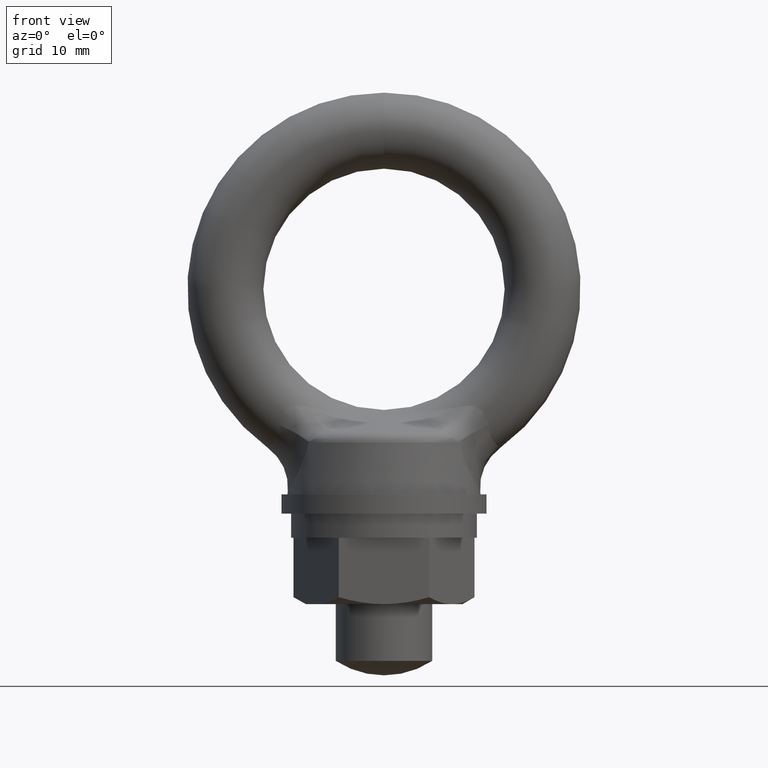
[diagram: clean part render]
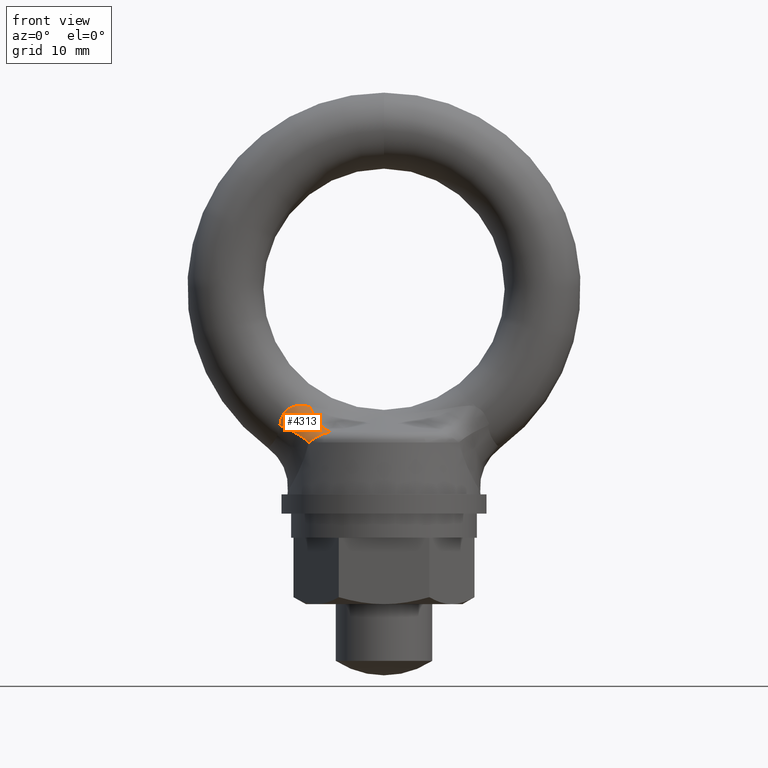
[diagram: same view with one face highlighted and labeled with its STEP entity id]
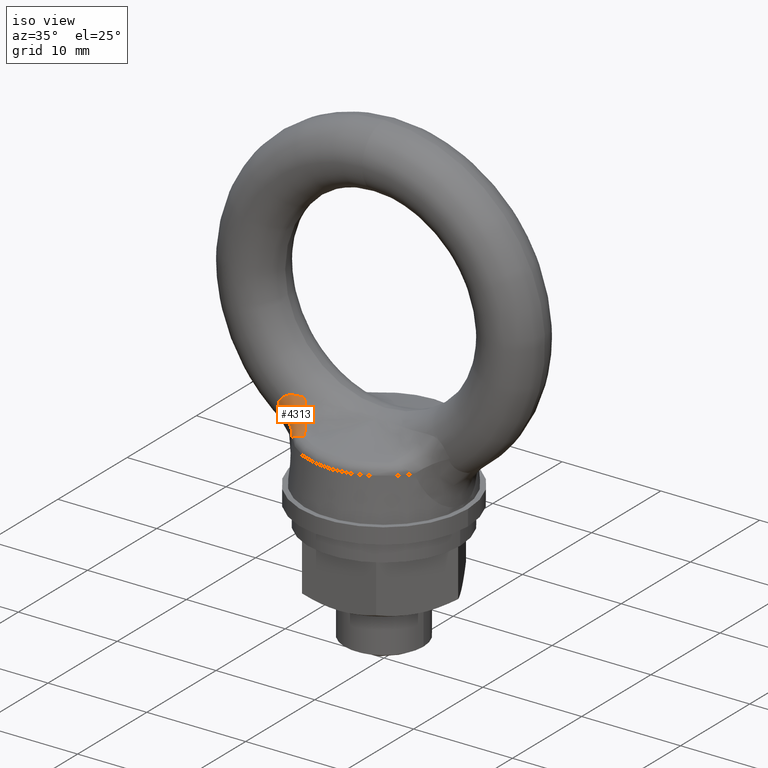
[diagram: same view with one face highlighted and labeled with its STEP entity id]
A machine part, front view. The second image highlights one B-rep face of the part: STEP entity #4313.
A second angle (iso view) of the same face is appended — the face is thin or edge-on in the first view.
In plain terms, the highlighted face is a freeform B-spline surface patch.
Its self-contained STEP definition (entity closure, byte-faithful):
#549 = CARTESIAN_POINT ( 'NONE',  ( -6.476156092700287900, -3.912001196998861700, -11.81391630610212200 ) ) ;
#550 = CARTESIAN_POINT ( 'NONE',  ( -6.685236267585130700, -3.734120323378470100, -11.65447365558294400 ) ) ;
#551 = CARTESIAN_POINT ( 'NONE',  ( -6.909989938914297800, -3.589379040130504800, -11.48736674495817000 ) ) ;
#552 = CARTESIAN_POINT ( 'NONE',  ( -7.134743610243464900, -3.444637756882539900, -11.32025983433339700 ) ) ;
#553 = CARTESIAN_POINT ( 'NONE',  ( -6.100932761017900500, -4.324183175825849500, -12.10863580525888100 ) ) ;
#554 = CARTESIAN_POINT ( 'NONE',  ( -6.288544426859093800, -4.118092186412355600, -11.96127605568050200 ) ) ;
#555 = CARTESIAN_POINT ( 'NONE',  ( -7.345488245778694700, -3.337025844902773200, -11.11253228624629900 ) ) ;
#556 = CARTESIAN_POINT ( 'NONE',  ( -7.594597750688612000, -3.261087111481088200, -10.93051454457098800 ) ) ;
#557 = CARTESIAN_POINT ( 'NONE',  ( -7.843707255598528300, -3.185148378059402800, -10.74849680289567600 ) ) ;
#558 = CARTESIAN_POINT ( 'NONE',  ( -8.101430728038158300, -3.146084794421552200, -10.56291336463829800 ) ) ;
#559 = CARTESIAN_POINT ( 'NONE',  ( -8.360512440170081700, -3.144996123536534200, -10.37898898836035700 ) ) ;
#560 = CARTESIAN_POINT ( 'NONE',  ( -5.794777641809549400, -4.814438929481252800, -12.36331135904009500 ) ) ;
#561 = CARTESIAN_POINT ( 'NONE',  ( -5.934809087086061500, -4.558462885634077600, -12.24389735153532200 ) ) ;
#562 = CARTESIAN_POINT ( 'NONE',  ( -5.828262570963138600, -4.790455905439663400, -12.38660495816619200 ) ) ;
#578 = CARTESIAN_POINT ( 'NONE',  ( -5.727022553237098600, -4.859879480258968900, -12.31788522595592500 ) ) ;
#579 = CARTESIAN_POINT ( 'NONE',  ( -5.868740153250576500, -4.597346636213478300, -12.20155193554739400 ) ) ;
#580 = CARTESIAN_POINT ( 'NONE',  ( -6.036477766308732600, -4.356914149110272300, -12.06711137091902100 ) ) ;
#581 = CARTESIAN_POINT ( 'NONE',  ( -6.225440381929806800, -4.145454276757679900, -11.91840716085605600 ) ) ;
#582 = CARTESIAN_POINT ( 'NONE',  ( -6.414402997550880900, -3.933994404405087400, -11.76970295079309100 ) ) ;
#583 = CARTESIAN_POINT ( 'NONE',  ( -6.624569730741310300, -3.751530511855067900, -11.60675153028037300 ) ) ;
#584 = CARTESIAN_POINT ( 'NONE',  ( -6.849932472588522900, -3.603277965144572100, -11.43421066744793700 ) ) ;
#585 = CARTESIAN_POINT ( 'NONE',  ( -7.075295214435734600, -3.455025418434076300, -11.26166980461550100 ) ) ;
#586 = CARTESIAN_POINT ( 'NONE',  ( -7.315829055168457300, -3.341000599005429000, -11.07955856243915300 ) ) ;
#587 = CARTESIAN_POINT ( 'NONE',  ( -7.564657528520692500, -3.264462771336132300, -10.89308162134639300 ) ) ;
#588 = CARTESIAN_POINT ( 'NONE',  ( -7.813486001872926900, -3.187924943666835500, -10.70660468025363300 ) ) ;
#589 = CARTESIAN_POINT ( 'NONE',  ( -8.392430793801462800, -3.141540437730855100, -10.43190945276440100 ) ) ;
#590 = CARTESIAN_POINT ( 'NONE',  ( -8.132279853775690600, -3.143287022869901900, -10.61004409142924800 ) ) ;
#591 = CARTESIAN_POINT ( 'NONE',  ( -7.624537972856531500, -3.257711451626043700, -10.96794746779558200 ) ) ;
#592 = CARTESIAN_POINT ( 'NONE',  ( -7.873928509324128900, -3.182371812451970000, -10.79038892553772100 ) ) ;
#593 = CARTESIAN_POINT ( 'NONE',  ( -7.375147436388933100, -3.333051090800117400, -11.14550601005344400 ) ) ;
#594 = CARTESIAN_POINT ( 'NONE',  ( -5.970532647643378400, -4.387192580609274200, -12.02825966723517400 ) ) ;
#595 = CARTESIAN_POINT ( 'NONE',  ( -6.160623691673925400, -4.170567881343173700, -11.87877069975228000 ) ) ;
#596 = CARTESIAN_POINT ( 'NONE',  ( -6.350714735704471500, -3.953943182077073600, -11.72928173226938700 ) ) ;
#597 = CARTESIAN_POINT ( 'NONE',  ( -6.561566292752525300, -3.766918328019699800, -11.56333996991188000 ) ) ;
#598 = CARTESIAN_POINT ( 'NONE',  ( -6.786982569877532800, -3.614988973491556600, -11.38582154835621000 ) ) ;
#599 = CARTESIAN_POINT ( 'NONE',  ( -7.012398847002540200, -3.463059618963413300, -11.20830312680054200 ) ) ;
#600 = CARTESIAN_POINT ( 'NONE',  ( -7.252353503444934900, -3.346243517494327200, -11.01922878975750700 ) ) ;
#601 = CARTESIAN_POINT ( 'NONE',  ( -7.499795562739315400, -3.267973265869248400, -10.82415441482692800 ) ) ;
#602 = CARTESIAN_POINT ( 'NONE',  ( -7.747237622033695800, -3.189703014244169600, -10.62908003989635100 ) ) ;
#603 = CARTESIAN_POINT ( 'NONE',  ( -8.002138169623075100, -3.149987758643249400, -10.42802842226974600 ) ) ;
#604 = CARTESIAN_POINT ( 'NONE',  ( -8.257007049705864100, -3.149994516771878600, -10.22690738738894300 ) ) ;
#605 = CARTESIAN_POINT ( 'NONE',  ( -5.692630692540992000, -4.881438677225352400, -12.29566022110292200 ) ) ;
#606 = CARTESIAN_POINT ( 'NONE',  ( -5.835242819433442000, -4.615802973279331300, -12.18108194192787000 ) ) ;
#607 = CARTESIAN_POINT ( 'NONE',  ( -6.003775804158309800, -4.372416534515990900, -12.04725882432544100 ) ) ;
#608 = CARTESIAN_POINT ( 'NONE',  ( -6.193342497148568000, -4.158336473033574300, -11.89807204120090500 ) ) ;
#609 = CARTESIAN_POINT ( 'NONE',  ( -6.382909190138826200, -3.944256411551157800, -11.74888525807636900 ) ) ;
#610 = CARTESIAN_POINT ( 'NONE',  ( -6.593488025714560100, -3.759507075726333800, -11.58435178170955900 ) ) ;
#611 = CARTESIAN_POINT ( 'NONE',  ( -6.818972333473924500, -3.609445311387661000, -11.40924253265333400 ) ) ;
#612 = CARTESIAN_POINT ( 'NONE',  ( -7.044456641233288100, -3.459383547048988600, -11.23413328359710700 ) ) ;
#613 = CARTESIAN_POINT ( 'NONE',  ( -7.284820767267831300, -3.344026421199226600, -11.04846817687600700 ) ) ;
#614 = CARTESIAN_POINT ( 'NONE',  ( -7.533094006877290000, -3.266718723277828800, -10.85763017951962600 ) ) ;
#615 = CARTESIAN_POINT ( 'NONE',  ( -7.781367246486748700, -3.189411025356431000, -10.66679218216324500 ) ) ;
#616 = CARTESIAN_POINT ( 'NONE',  ( -8.037521350678360900, -3.150161547812988100, -10.47080299304818100 ) ) ;
#617 = CARTESIAN_POINT ( 'NONE',  ( -8.294127381507474100, -3.150108344288771200, -10.27534434111869600 ) ) ;
#618 = CARTESIAN_POINT ( 'NONE',  ( -5.587760008573173600, -4.942915956226676700, -12.23043388292899700 ) ) ;
#619 = CARTESIAN_POINT ( 'NONE',  ( -5.733187349634504500, -4.668569488404048500, -12.12167123059101600 ) ) ;
#620 = CARTESIAN_POINT ( 'NONE',  ( -5.904046334613518400, -4.416744672795839900, -11.99026135305464200 ) ) ;
#621 = CARTESIAN_POINT ( 'NONE',  ( -6.095186080724640300, -4.195030697962372400, -11.84016801685503300 ) ) ;
#622 = CARTESIAN_POINT ( 'NONE',  ( -6.286325826835762200, -3.973316723128904800, -11.69007468065542500 ) ) ;
#623 = CARTESIAN_POINT ( 'NONE',  ( -6.497722826828452400, -3.781740832606431900, -11.52131634631651400 ) ) ;
#624 = CARTESIAN_POINT ( 'NONE',  ( -6.723003042684750200, -3.626076297699347700, -11.33897957976196300 ) ) ;
#625 = CARTESIAN_POINT ( 'NONE',  ( -6.948283258541047200, -3.470411762792263500, -11.15664281320741200 ) ) ;
#626 = CARTESIAN_POINT ( 'NONE',  ( -7.187418975799139400, -3.350677710084530000, -10.96075001552050700 ) ) ;
#627 = CARTESIAN_POINT ( 'NONE',  ( -7.433198674463366900, -3.270482351052088200, -10.75720288544153300 ) ) ;
#628 = CARTESIAN_POINT ( 'NONE',  ( -7.678978373127592700, -3.190286992019646800, -10.55365575536255900 ) ) ;
#629 = CARTESIAN_POINT ( 'NONE',  ( -7.931371807512504400, -3.149640180303771700, -10.34247928071287400 ) ) ;
#630 = CARTESIAN_POINT ( 'NONE',  ( -8.182766386102647600, -3.149766861738093400, -10.13003347992943400 ) ) ;
#631 = CARTESIAN_POINT ( 'NONE',  ( -5.657673797885052200, -4.901931103559127800, -12.27391810837828100 ) ) ;
#632 = CARTESIAN_POINT ( 'NONE',  ( -5.801224329500462900, -4.633391811654237600, -12.16127837148225200 ) ) ;
#665 = CARTESIAN_POINT ( 'NONE',  ( -8.070581602300627800, -3.148882565973202900, -10.51578263784735000 ) ) ;
#666 = CARTESIAN_POINT ( 'NONE',  ( -8.328594086538700500, -3.148451809342212900, -10.32606852395631200 ) ) ;
#667 = CARTESIAN_POINT ( 'NONE',  ( -5.760900097523324000, -4.837159204870110900, -12.34059829249801000 ) ) ;
#668 = CARTESIAN_POINT ( 'NONE',  ( -5.901774620168319000, -4.577904760923777500, -12.22272464354135800 ) ) ;
#669 = CARTESIAN_POINT ( 'NONE',  ( -6.068705263663316500, -4.340548662468060900, -12.08787358808895200 ) ) ;
#670 = CARTESIAN_POINT ( 'NONE',  ( -6.256992404394450700, -4.131773231585017700, -11.93984160826828000 ) ) ;
#671 = CARTESIAN_POINT ( 'NONE',  ( -6.445279545125584000, -3.922997800701974600, -11.79180962844760700 ) ) ;
#672 = CARTESIAN_POINT ( 'NONE',  ( -6.654902999163220500, -3.742825417616769000, -11.63061259293165900 ) ) ;
#673 = CARTESIAN_POINT ( 'NONE',  ( -6.879961205751410300, -3.596328502637538400, -11.46078870620305400 ) ) ;
#674 = CARTESIAN_POINT ( 'NONE',  ( -7.105019412339599300, -3.449831587658308300, -11.29096481947444800 ) ) ;
#675 = CARTESIAN_POINT ( 'NONE',  ( -6.285379818610471700, -3.817017253275098600, -11.42337333278908500 ) ) ;
#676 = CARTESIAN_POINT ( 'NONE',  ( -6.506026838109834300, -3.648809893799528100, -11.23021277507722400 ) ) ;
#677 = CARTESIAN_POINT ( 'NONE',  ( -6.726673857609196000, -3.480602534323957700, -11.03705221736536400 ) ) ;
#678 = CARTESIAN_POINT ( 'NONE',  ( -6.958130145309438900, -3.349190396471075200, -10.82422615832971000 ) ) ;
#679 = CARTESIAN_POINT ( 'NONE',  ( -7.193027001654959600, -3.258756494738037600, -10.59850941036612000 ) ) ;
#680 = CARTESIAN_POINT ( 'NONE',  ( -7.427923858000480300, -3.168322593005000100, -10.37279266240253200 ) ) ;
#681 = CARTESIAN_POINT ( 'NONE',  ( -7.666229023166330600, -3.118879341761675600, -10.13421621532123100 ) ) ;
#682 = CARTESIAN_POINT ( 'NONE',  ( -7.900355542772931700, -3.112000314426404100, -9.890374307357625100 ) ) ;
#683 = CARTESIAN_POINT ( 'NONE',  ( -5.402983331881432400, -5.029374207256203100, -12.12954405148348900 ) ) ;
#684 = CARTESIAN_POINT ( 'NONE',  ( -5.553581640842129900, -4.743954002434464600, -12.03301421460235500 ) ) ;
#685 = CARTESIAN_POINT ( 'NONE',  ( -5.727771767420964700, -4.480525463828811900, -11.90837414744153300 ) ) ;
#686 = CARTESIAN_POINT ( 'NONE',  ( -5.920048495379881500, -4.247413826971936100, -11.75956355735659800 ) ) ;
#687 = CARTESIAN_POINT ( 'NONE',  ( -6.112325223338799200, -4.014302190115060400, -11.61075296727166500 ) ) ;
#688 = CARTESIAN_POINT ( 'NONE',  ( -6.322662532440459900, -3.811538996710717200, -11.43779199346378100 ) ) ;
#689 = CARTESIAN_POINT ( 'NONE',  ( -6.544412499392944200, -3.645532107857250900, -11.24614698412781300 ) ) ;
#690 = CARTESIAN_POINT ( 'NONE',  ( -6.766162466345427600, -3.479525219003784600, -11.05450197479184700 ) ) ;
#691 = CARTESIAN_POINT ( 'NONE',  ( -6.999295080058805000, -3.350297095393595500, -10.84419886113103200 ) ) ;
#692 = CARTESIAN_POINT ( 'NONE',  ( -7.236441680347841300, -3.261931533519467000, -10.62188367748169100 ) ) ;
#693 = CARTESIAN_POINT ( 'NONE',  ( -7.473588280636877600, -3.173565971645337900, -10.39956849383235000 ) ) ;
#694 = CARTESIAN_POINT ( 'NONE',  ( -7.714716770385038600, -3.126074925784860800, -10.16527131769852900 ) ) ;
#695 = CARTESIAN_POINT ( 'NONE',  ( -7.952205487528909900, -3.120958949921480900, -9.926396069955147900 ) ) ;
#696 = CARTESIAN_POINT ( 'NONE',  ( -5.440528576997341900, -5.012792549560182400, -12.14931927328692200 ) ) ;
#697 = CARTESIAN_POINT ( 'NONE',  ( -5.590091151211447100, -4.729394914089970000, -12.05024952610595600 ) ) ;
#698 = CARTESIAN_POINT ( 'NONE',  ( -5.763664575588300000, -4.468148414583331500, -11.92413853173697900 ) ) ;
#699 = CARTESIAN_POINT ( 'NONE',  ( -5.955808612461902700, -4.237241188434159000, -11.77493893318467300 ) ) ;
#700 = CARTESIAN_POINT ( 'NONE',  ( -6.147952649335504600, -4.006333962284986500, -11.62573933463236900 ) ) ;
#701 = CARTESIAN_POINT ( 'NONE',  ( -6.358641728667716800, -3.805796738037739800, -11.45347098699861200 ) ) ;
#702 = CARTESIAN_POINT ( 'NONE',  ( -6.581272312680145100, -3.641914868215139200, -11.26353322348674100 ) ) ;
#703 = CARTESIAN_POINT ( 'NONE',  ( -6.803902896692572500, -3.478032998392538700, -11.07359545997487000 ) ) ;
#704 = CARTESIAN_POINT ( 'NONE',  ( -7.038445358275174300, -3.350828291975649800, -10.86601355701779800 ) ) ;
#705 = CARTESIAN_POINT ( 'NONE',  ( -7.277548533283102500, -3.264287671718494100, -10.64729366549260400 ) ) ;
#706 = CARTESIAN_POINT ( 'NONE',  ( -7.516651708291030700, -3.177747051461338000, -10.42857377396741100 ) ) ;
#707 = CARTESIAN_POINT ( 'NONE',  ( -7.760283777483866000, -3.131882033968834900, -10.19874500055916000 ) ) ;
#708 = CARTESIAN_POINT ( 'NONE',  ( -8.000808685029753100, -3.128130146884462000, -9.965010770298580000 ) ) ;
#709 = CARTESIAN_POINT ( 'NONE',  ( -5.515619067229162700, -4.979629234168141000, -12.18886971689379300 ) ) ;
#710 = CARTESIAN_POINT ( 'NONE',  ( -5.663110171950081400, -4.700276737400980800, -12.08472014911316200 ) ) ;
#711 = CARTESIAN_POINT ( 'NONE',  ( -5.835450191922972400, -4.443394316092367900, -11.95566730032787300 ) ) ;
#712 = CARTESIAN_POINT ( 'NONE',  ( -6.027328846625944300, -4.216895911358603800, -11.80568968484082500 ) ) ;
#713 = CARTESIAN_POINT ( 'NONE',  ( -6.219207501328916100, -3.990397506624840100, -11.65571206935377900 ) ) ;
#714 = CARTESIAN_POINT ( 'NONE',  ( -6.430600121122230600, -3.794312220691783600, -11.48482897406827700 ) ) ;
#715 = CARTESIAN_POINT ( 'NONE',  ( -6.654991939254546000, -3.634680388930915400, -11.29830570220459400 ) ) ;
#716 = CARTESIAN_POINT ( 'NONE',  ( -6.879383757386862400, -3.475048557170046700, -11.11178243034091300 ) ) ;
#717 = CARTESIAN_POINT ( 'NONE',  ( -7.116745914707912800, -3.351890685139758700, -10.90964294879132400 ) ) ;
#718 = CARTESIAN_POINT ( 'NONE',  ( -7.359762239153625700, -3.268999948116548800, -10.69811364151442800 ) ) ;
#719 = CARTESIAN_POINT ( 'NONE',  ( -7.602778563599338600, -3.186109211093338400, -10.48658433423753400 ) ) ;
#720 = CARTESIAN_POINT ( 'NONE',  ( -7.851417791681521800, -3.143496250336783100, -10.26569236628042200 ) ) ;
#721 = CARTESIAN_POINT ( 'NONE',  ( -8.098015080031441200, -3.142472540810423300, -10.04224017098544200 ) ) ;
#722 = CARTESIAN_POINT ( 'NONE',  ( -7.227243260584975500, -3.140839083362946900, -10.28420570022419900 ) ) ;
#723 = CARTESIAN_POINT ( 'NONE',  ( -7.452247441578239600, -3.081259619544916500, -10.03059335644270600 ) ) ;
#724 = CARTESIAN_POINT ( 'NONE',  ( -7.670983266815196300, -3.064440055428737900, -9.768959696681811500 ) ) ;
#725 = CARTESIAN_POINT ( 'NONE',  ( -5.246962273072974800, -5.088756589960947700, -12.05495723409649300 ) ) ;
#726 = CARTESIAN_POINT ( 'NONE',  ( -5.401512042342473800, -4.797234546224319600, -11.96932266300457900 ) ) ;
#727 = CARTESIAN_POINT ( 'NONE',  ( -5.577486196440269800, -4.526527048795231600, -11.85162142931953800 ) ) ;
#728 = CARTESIAN_POINT ( 'NONE',  ( -5.769189796503073200, -4.285394709292291700, -11.70566283969753800 ) ) ;
#729 = CARTESIAN_POINT ( 'NONE',  ( -5.960893396565875700, -4.044262369789352700, -11.55970425007554100 ) ) ;
#730 = CARTESIAN_POINT ( 'NONE',  ( -6.168299229587428400, -3.832739415553851400, -11.38550902445649400 ) ) ;
#731 = CARTESIAN_POINT ( 'NONE',  ( -6.384695007701148800, -3.657671026544800700, -11.18871456056858100 ) ) ;
#732 = CARTESIAN_POINT ( 'NONE',  ( -6.601090785814869300, -3.482602637535749900, -10.99192009668066900 ) ) ;
#733 = CARTESIAN_POINT ( 'NONE',  ( -6.826445789683550200, -3.344013662673518200, -10.77255432896739300 ) ) ;
#734 = CARTESIAN_POINT ( 'NONE',  ( -7.053466712998934800, -3.246388904115928000, -10.53771629475044400 ) ) ;
#735 = CARTESIAN_POINT ( 'NONE',  ( -7.280487636314319400, -3.148764145558337300, -10.30287826053349300 ) ) ;
#736 = CARTESIAN_POINT ( 'NONE',  ( -7.509142250307606400, -3.092117458628161700, -10.05260129296714100 ) ) ;
#737 = CARTESIAN_POINT ( 'NONE',  ( -7.732030338177949600, -3.078281758013508500, -9.794984618269676700 ) ) ;
#738 = CARTESIAN_POINT ( 'NONE',  ( -5.286419740491149700, -5.074857045553559800, -12.07285761770837100 ) ) ;
#739 = CARTESIAN_POINT ( 'NONE',  ( -5.440035607758526100, -4.784593041030229100, -11.98445028468013800 ) ) ;
#740 = CARTESIAN_POINT ( 'NONE',  ( -5.615673110004608200, -4.515503856714971700, -11.86490877777958300 ) ) ;
#741 = CARTESIAN_POINT ( 'NONE',  ( -5.807674354517804900, -4.276257571905572900, -11.71808433079838900 ) ) ;
#742 = CARTESIAN_POINT ( 'NONE',  ( -5.999675599031000700, -4.037011287096173200, -11.57125988381719500 ) ) ;
#743 = CARTESIAN_POINT ( 'NONE',  ( -6.208013583066493100, -3.827641545371197400, -11.39717314691240600 ) ) ;
#744 = CARTESIAN_POINT ( 'NONE',  ( -6.425976778136380600, -3.654892556561456700, -11.20143208268863500 ) ) ;
#745 = CARTESIAN_POINT ( 'NONE',  ( -6.643939973206268900, -3.482143567751716100, -11.00569101846486200 ) ) ;
#746 = CARTESIAN_POINT ( 'NONE',  ( -6.871497723362757000, -3.346039623013021400, -10.78832315324491900 ) ) ;
#747 = CARTESIAN_POINT ( 'NONE',  ( -7.101319125220569200, -3.250964722950314500, -10.55633033362938300 ) ) ;
#748 = CARTESIAN_POINT ( 'NONE',  ( -7.331140527078381400, -3.155889822887607600, -10.32433751401384500 ) ) ;
#749 = CARTESIAN_POINT ( 'NONE',  ( -7.563193255000983900, -3.101857334712360400, -10.07775236160246900 ) ) ;
#750 = CARTESIAN_POINT ( 'NONE',  ( -7.790001381411688200, -3.090607423057835300, -9.824517598441076400 ) ) ;
#751 = CARTESIAN_POINT ( 'NONE',  ( -5.325518159168656700, -5.059977304216046100, -12.09154800065072500 ) ) ;
#752 = CARTESIAN_POINT ( 'NONE',  ( -5.478143725901548900, -4.771242159379980300, -12.00041014714223000 ) ) ;
#753 = CARTESIAN_POINT ( 'NONE',  ( -5.653334144315536500, -4.503976878964899700, -11.87912958132124100 ) ) ;
#754 = CARTESIAN_POINT ( 'NONE',  ( -5.845479064013158400, -4.266740446308933300, -11.73159022832943200 ) ) ;
#755 = CARTESIAN_POINT ( 'NONE',  ( -6.037623983710780400, -4.029504013652966100, -11.58405087533762200 ) ) ;
#756 = CARTESIAN_POINT ( 'NONE',  ( -6.246696700838482400, -3.822329399323148600, -11.41027323985074600 ) ) ;
#757 = CARTESIAN_POINT ( 'NONE',  ( -6.466001808123107400, -3.651851225180492700, -11.21582242888293000 ) ) ;
#758 = CARTESIAN_POINT ( 'NONE',  ( -6.685306915407732500, -3.481373051037836700, -11.02137161791511300 ) ) ;
#759 = CARTESIAN_POINT ( 'NONE',  ( -6.914813934336097900, -3.347615009742048300, -10.80627465578731400 ) ) ;
#760 = CARTESIAN_POINT ( 'NONE',  ( -7.147173063437763900, -3.254860608844176300, -10.57741987199775100 ) ) ;
#761 = CARTESIAN_POINT ( 'NONE',  ( -7.379532192539430800, -3.162106207946303800, -10.34856508820818800 ) ) ;
#762 = CARTESIAN_POINT ( 'NONE',  ( -7.614711139083657300, -3.110368338237017700, -10.10598428846184900 ) ) ;
#763 = CARTESIAN_POINT ( 'NONE',  ( -7.845178462092310000, -3.101303868742119700, -9.857445952899350800 ) ) ;
#764 = CARTESIAN_POINT ( 'NONE',  ( -5.364616577846164500, -5.045097562878532400, -12.11023838359308000 ) ) ;
#765 = CARTESIAN_POINT ( 'NONE',  ( -5.516251844044570700, -4.757891277729730600, -12.01637000960432300 ) ) ;
#766 = CARTESIAN_POINT ( 'NONE',  ( -5.690995178626463900, -4.492449901214827800, -11.89335038486290100 ) ) ;
#767 = CARTESIAN_POINT ( 'NONE',  ( -5.883283773508511900, -4.257223320712293800, -11.74509612586047400 ) ) ;
#768 = CARTESIAN_POINT ( 'NONE',  ( -6.075572368390560000, -4.021996740209759800, -11.59684186685805000 ) ) ;
#769 = CARTESIAN_POINT ( 'NONE',  ( -5.118157306092312500, -4.876970436263194500, -11.87824590815015200 ) ) ;
#770 = CARTESIAN_POINT ( 'NONE',  ( -5.293194583065350400, -4.598337839157555800, -11.77472540473542000 ) ) ;
#771 = CARTESIAN_POINT ( 'NONE',  ( -5.478967115033031900, -4.345970678952895100, -11.63739778607590800 ) ) ;
#772 = CARTESIAN_POINT ( 'NONE',  ( -5.664739647000713400, -4.093603518748233600, -11.50007016741639600 ) ) ;
#773 = CARTESIAN_POINT ( 'NONE',  ( -5.861220669621537200, -3.867538154107415400, -11.32895521837074100 ) ) ;
#774 = CARTESIAN_POINT ( 'NONE',  ( -6.062004704623569200, -3.675144542504845900, -11.12963145778770600 ) ) ;
#775 = CARTESIAN_POINT ( 'NONE',  ( -6.262788739625600300, -3.482750930902275900, -10.93030769720467400 ) ) ;
#776 = CARTESIAN_POINT ( 'NONE',  ( -6.467846859952596000, -3.324056790581708200, -10.70280384175803900 ) ) ;
#777 = CARTESIAN_POINT ( 'NONE',  ( -6.670493965350509300, -3.204235709577994300, -10.45453674516429200 ) ) ;
#778 = CARTESIAN_POINT ( 'NONE',  ( -6.873141070748421700, -3.084414628574279900, -10.20626964857054600 ) ) ;
#779 = CARTESIAN_POINT ( 'NONE',  ( -7.073347965747524700, -3.003483869570427800, -9.937275078794336000 ) ) ;
#780 = CARTESIAN_POINT ( 'NONE',  ( -7.264587704901879700, -2.964081856427507800, -9.656322528425773700 ) ) ;
#781 = CARTESIAN_POINT ( 'NONE',  ( -5.045203635295420600, -5.151120167356649100, -11.97247874010380300 ) ) ;
#782 = CARTESIAN_POINT ( 'NONE',  ( -5.203475093506437300, -4.855584815148199100, -11.90074278983519600 ) ) ;
#783 = CARTESIAN_POINT ( 'NONE',  ( -5.379768195630942900, -4.578511135334070800, -11.79291327715818700 ) ) ;
#784 = CARTESIAN_POINT ( 'NONE',  ( -5.568313972904364900, -4.328966450284030800, -11.65251834877541300 ) ) ;
#785 = CARTESIAN_POINT ( 'NONE',  ( -5.756859750177786900, -4.079421765233990800, -11.51212342039263700 ) ) ;
#786 = CARTESIAN_POINT ( 'NONE',  ( -5.957630834067966700, -3.857442304984244800, -11.33918345435227000 ) ) ;
#787 = CARTESIAN_POINT ( 'NONE',  ( -6.164057598338137800, -3.670292767116334300, -11.13935761896977700 ) ) ;
#788 = CARTESIAN_POINT ( 'NONE',  ( -6.370484362608308100, -3.483143229248423900, -10.93953178358728500 ) ) ;
#789 = CARTESIAN_POINT ( 'NONE',  ( -6.582536846066846100, -3.330850788431407600, -10.71284908744651800 ) ) ;
#790 = CARTESIAN_POINT ( 'NONE',  ( -6.793276577300274800, -3.218399947586137800, -10.46672773614975700 ) ) ;
#791 = CARTESIAN_POINT ( 'NONE',  ( -7.004016308533702600, -3.105949106740868000, -10.22060638485299400 ) ) ;
#792 = CARTESIAN_POINT ( 'NONE',  ( -7.213412702926724800, -3.033356198711588000, -9.955082110718386400 ) ) ;
#793 = CARTESIAN_POINT ( 'NONE',  ( -7.414614479907586800, -3.002997829178651700, -9.678844522526130600 ) ) ;
#794 = CARTESIAN_POINT ( 'NONE',  ( -5.127074929622108500, -5.128091074887000100, -12.00360187031553500 ) ) ;
#795 = CARTESIAN_POINT ( 'NONE',  ( -5.284108016763577900, -4.833548989371516700, -11.92630158085806800 ) ) ;
#796 = CARTESIAN_POINT ( 'NONE',  ( -5.460635376538389700, -4.558557451893131300, -11.81434806894155200 ) ) ;
#797 = CARTESIAN_POINT ( 'NONE',  ( -5.650887871776793000, -4.312103047802349200, -11.67140098207840600 ) ) ;
#798 = CARTESIAN_POINT ( 'NONE',  ( -5.841140367015197100, -4.065648643711567100, -11.52845389521526100 ) ) ;
#799 = CARTESIAN_POINT ( 'NONE',  ( -6.045090450316736000, -3.847767049034000100, -11.35453393369057700 ) ) ;
#800 = CARTESIAN_POINT ( 'NONE',  ( -6.256072194260354100, -3.665578104283805100, -11.15532513799123900 ) ) ;
#801 = CARTESIAN_POINT ( 'NONE',  ( -6.467053938203972200, -3.483389159533610200, -10.95611634229189900 ) ) ;
#802 = CARTESIAN_POINT ( 'NONE',  ( -6.685036789129575200, -3.336919233842612400, -10.73164755168276600 ) ) ;
#803 = CARTESIAN_POINT ( 'NONE',  ( -6.902895649127931900, -3.230954096407389300, -10.48925406564418800 ) ) ;
#804 = CARTESIAN_POINT ( 'NONE',  ( -7.120754509126288500, -3.124988958972166200, -10.24686057960561000 ) ) ;
#805 = CARTESIAN_POINT ( 'NONE',  ( -7.338457824119507800, -3.059543941378426000, -9.986577483393835700 ) ) ;
#806 = CARTESIAN_POINT ( 'NONE',  ( -7.548889124089689600, -3.036756650259197200, -9.716909853506082900 ) ) ;
#807 = CARTESIAN_POINT ( 'NONE',  ( -5.206999825256019700, -5.101868084936298500, -12.03783877950284200 ) ) ;
#808 = CARTESIAN_POINT ( 'NONE',  ( -5.362377367149508500, -4.809339360606718300, -11.95498230228907500 ) ) ;
#809 = CARTESIAN_POINT ( 'NONE',  ( -5.538535923139643400, -4.537203849827864800, -11.83919697586021000 ) ) ;
#810 = CARTESIAN_POINT ( 'NONE',  ( -5.729755821594313400, -4.294297488795644200, -11.69424222049116200 ) ) ;
#811 = CARTESIAN_POINT ( 'NONE',  ( -5.920975720048982500, -4.051391127763424500, -11.54928746512211500 ) ) ;
#812 = CARTESIAN_POINT ( 'NONE',  ( -6.127229636497197900, -3.837748626713900700, -11.37518399420118900 ) ) ;
#813 = CARTESIAN_POINT ( 'NONE',  ( -6.341820736554217900, -3.660306719124468700, -11.17758475304280100 ) ) ;
#814 = CARTESIAN_POINT ( 'NONE',  ( -6.556411836611237800, -3.482864811535036700, -10.97998551188441300 ) ) ;
#815 = CARTESIAN_POINT ( 'NONE',  ( -6.779309456165558200, -3.341648853063216200, -10.75891873653918300 ) ) ;
#816 = CARTESIAN_POINT ( 'NONE',  ( -7.003276358375266900, -3.241243968213081600, -10.52156221838169100 ) ) ;
#817 = CARTESIAN_POINT ( 'NONE',  ( -5.843940259693493300, -3.685149651322390300, -11.11823449370136000 ) ) ;
#818 = CARTESIAN_POINT ( 'NONE',  ( -6.032030617876204200, -3.481882031295684900, -10.92135226434247400 ) ) ;
#819 = CARTESIAN_POINT ( 'NONE',  ( -6.221746001148544800, -3.309659707176710400, -10.69399232389445200 ) ) ;
#820 = CARTESIAN_POINT ( 'NONE',  ( -6.406986890880390600, -3.174020790147161100, -10.44346513671637100 ) ) ;
#821 = CARTESIAN_POINT ( 'NONE',  ( -6.592227780612235600, -3.038381873117612200, -10.19293794953829000 ) ) ;
#822 = CARTESIAN_POINT ( 'NONE',  ( -6.772968228120600300, -2.939345372835541900, -9.919278617620408400 ) ) ;
#823 = CARTESIAN_POINT ( 'NONE',  ( -6.943397433167370500, -2.880096366787706900, -9.631286470092346600 ) ) ;
#824 = CARTESIAN_POINT ( 'NONE',  ( -4.827856950167392500, -5.204594373460042600, -11.90521050835185300 ) ) ;
#825 = CARTESIAN_POINT ( 'NONE',  ( -4.986176359688062800, -4.908825249308334200, -11.84685401311379100 ) ) ;
#826 = CARTESIAN_POINT ( 'NONE',  ( -5.158499777058929100, -4.628185890348733600, -11.74994797838475900 ) ) ;
#827 = CARTESIAN_POINT ( 'NONE',  ( -5.339262022230321300, -4.371739537001277000, -11.61762198190522900 ) ) ;
#828 = CARTESIAN_POINT ( 'NONE',  ( -5.520024267401714400, -4.115293183653820500, -11.48529598542569900 ) ) ;
#829 = CARTESIAN_POINT ( 'NONE',  ( -5.709199788478326100, -3.883076086244822400, -11.31756873231855700 ) ) ;
#830 = CARTESIAN_POINT ( 'NONE',  ( -5.900679167182336600, -3.682587689582249800, -11.11985696963431800 ) ) ;
#831 = CARTESIAN_POINT ( 'NONE',  ( -6.092158545886347200, -3.482099292919677200, -10.92214520695007900 ) ) ;
#832 = CARTESIAN_POINT ( 'NONE',  ( -6.285914715387326300, -3.313367937316062100, -10.69447688250636500 ) ) ;
#833 = CARTESIAN_POINT ( 'NONE',  ( -6.475690325491905600, -3.181842797284571300, -10.44420453861267000 ) ) ;
#834 = CARTESIAN_POINT ( 'NONE',  ( -6.665465935596484900, -3.050317657253081000, -10.19393219471897700 ) ) ;
#835 = CARTESIAN_POINT ( 'NONE',  ( -6.851234160312783300, -2.956017324710435100, -9.921091208966037900 ) ) ;
#836 = CARTESIAN_POINT ( 'NONE',  ( -7.026995619905723500, -2.901987226316287100, -9.634492973524521300 ) ) ;
#837 = CARTESIAN_POINT ( 'NONE',  ( -4.872961590662517200, -5.194116363192545500, -11.91750090051141000 ) ) ;
#838 = CARTESIAN_POINT ( 'NONE',  ( -5.031650792092017700, -4.898198161650882700, -11.85652093932977800 ) ) ;
#839 = CARTESIAN_POINT ( 'NONE',  ( -5.205175147707280700, -4.618134485238396500, -11.75735797521215400 ) ) ;
#840 = CARTESIAN_POINT ( 'NONE',  ( -5.387906382370466900, -4.363009574399886700, -11.62322814455623100 ) ) ;
#841 = CARTESIAN_POINT ( 'NONE',  ( -5.570637617033652200, -4.107884663561375900, -11.48909831390030900 ) ) ;
#842 = CARTESIAN_POINT ( 'NONE',  ( -5.762549675445869800, -3.877734901140549500, -11.32002074157686900 ) ) ;
#843 = CARTESIAN_POINT ( 'NONE',  ( -5.957418074671180000, -3.680025727842109800, -11.12147944556727600 ) ) ;
#844 = CARTESIAN_POINT ( 'NONE',  ( -6.152286473896489300, -3.482316554543670100, -10.92293814955768200 ) ) ;
#845 = CARTESIAN_POINT ( 'NONE',  ( -6.350083429626106800, -3.317076167455414100, -10.69496144111827700 ) ) ;
#846 = CARTESIAN_POINT ( 'NONE',  ( -6.544393760103420600, -3.189664804421982000, -10.44494394050896900 ) ) ;
#847 = CARTESIAN_POINT ( 'NONE',  ( -6.738704090580733400, -3.062253441388549400, -10.19492643989966200 ) ) ;
#848 = CARTESIAN_POINT ( 'NONE',  ( -6.929500092504966300, -2.972689276585328800, -9.922903800311665600 ) ) ;
#849 = CARTESIAN_POINT ( 'NONE',  ( -7.110593806644076600, -2.923878085844867900, -9.637699476956695900 ) ) ;
#850 = CARTESIAN_POINT ( 'NONE',  ( -4.916740694529035100, -5.183617068814413600, -11.93063726617213600 ) ) ;
#851 = CARTESIAN_POINT ( 'NONE',  ( -5.075498412385250900, -4.887663246820691800, -11.86699746730762900 ) ) ;
#852 = CARTESIAN_POINT ( 'NONE',  ( -5.249907776782554200, -4.608251191069298300, -11.76563146852403800 ) ) ;
#853 = CARTESIAN_POINT ( 'NONE',  ( -5.434293686097365000, -4.354472793287326800, -11.62983750472615800 ) ) ;
#854 = CARTESIAN_POINT ( 'NONE',  ( -5.618679595412176700, -4.100694395505356300, -11.49404354092827600 ) ) ;
#855 = CARTESIAN_POINT ( 'NONE',  ( -5.813015587398322900, -3.872586078668999800, -11.32384110037997400 ) ) ;
#856 = CARTESIAN_POINT ( 'NONE',  ( -6.010978257766285400, -3.677570430199101500, -11.12476837719667000 ) ) ;
#857 = CARTESIAN_POINT ( 'NONE',  ( -6.208940928134246900, -3.482554781729202200, -10.92569565401336500 ) ) ;
#858 = CARTESIAN_POINT ( 'NONE',  ( -6.410501866895471900, -3.320659791656858800, -10.69778121891379600 ) ) ;
#859 = CARTESIAN_POINT ( 'NONE',  ( -6.609102659375626100, -3.197153590573922300, -10.44844124967155900 ) ) ;
#860 = CARTESIAN_POINT ( 'NONE',  ( -6.807703451855781300, -3.073647389490986400, -10.19910128042932100 ) ) ;
#861 = CARTESIAN_POINT ( 'NONE',  ( -7.003315597157923700, -2.988547704999847500, -9.928371562832312600 ) ) ;
#862 = CARTESIAN_POINT ( 'NONE',  ( -7.189574317399025600, -2.944623870051935800, -9.645061531375596100 ) ) ;
#863 = CARTESIAN_POINT ( 'NONE',  ( -4.959561674784496600, -5.172784768328492400, -11.94458442414935800 ) ) ;
#864 = CARTESIAN_POINT ( 'NONE',  ( -6.377126239955264200, -2.736123677506550100, -9.675600636128425700 ) ) ;
#865 = CARTESIAN_POINT ( 'NONE',  ( -4.593843578263660600, -5.257515863859534700, -11.85030244526379100 ) ) ;
#866 = CARTESIAN_POINT ( 'NONE',  ( -4.748046932437880200, -4.963034515516255900, -11.80476474778883900 ) ) ;
#867 = CARTESIAN_POINT ( 'NONE',  ( -4.912074889258056100, -4.679868342327177200, -11.71947442826329000 ) ) ;
#868 = CARTESIAN_POINT ( 'NONE',  ( -5.080785958301089700, -4.416896301296731900, -11.59710378482267500 ) ) ;
#869 = CARTESIAN_POINT ( 'NONE',  ( -5.249497027344123300, -4.153924260266285800, -11.47473314138206000 ) ) ;
#870 = CARTESIAN_POINT ( 'NONE',  ( -5.422868762322980100, -3.911181377141940800, -11.31529845359445700 ) ) ;
#871 = CARTESIAN_POINT ( 'NONE',  ( -5.595467927608702900, -3.696280508923832600, -11.12379724961016500 ) ) ;
#872 = CARTESIAN_POINT ( 'NONE',  ( -5.768067092894426700, -3.481379640705724500, -10.93229604562587400 ) ) ;
#873 = CARTESIAN_POINT ( 'NONE',  ( -5.939870734073269700, -3.294349423794177900, -10.70875381486907200 ) ) ;
#874 = CARTESIAN_POINT ( 'NONE',  ( -6.105495769125232300, -3.141057193439334800, -10.46017876568572700 ) ) ;
#875 = CARTESIAN_POINT ( 'NONE',  ( -6.271120804177194000, -2.987764963084492000, -10.21160371650238300 ) ) ;
#876 = CARTESIAN_POINT ( 'NONE',  ( -6.430545214592868300, -2.868231163026851800, -9.938028943975590200 ) ) ;
#877 = CARTESIAN_POINT ( 'NONE',  ( -6.578774749034552700, -2.786207997542173400, -9.648032153867895000 ) ) ;
#878 = CARTESIAN_POINT ( 'NONE',  ( -4.688879352135636200, -5.236178986276585500, -11.87110480332366300 ) ) ;
#879 = CARTESIAN_POINT ( 'NONE',  ( -4.845131106834439400, -4.941113424630146700, -11.82049129457203000 ) ) ;
#880 = CARTESIAN_POINT ( 'NONE',  ( -5.012876855257878200, -4.658915573769806300, -11.73049967376009100 ) ) ;
#881 = CARTESIAN_POINT ( 'NONE',  ( -5.186787634431540900, -4.398550322003175400, -11.60398880330207500 ) ) ;
#882 = CARTESIAN_POINT ( 'NONE',  ( -5.360698413605204500, -4.138185070236543700, -11.47747793284405800 ) ) ;
#883 = CARTESIAN_POINT ( 'NONE',  ( -5.540750442095570900, -3.899688021216003400, -11.31446511247187400 ) ) ;
#884 = CARTESIAN_POINT ( 'NONE',  ( -5.721223809846434500, -3.690635771997998300, -11.12012894904907200 ) ) ;
#885 = CARTESIAN_POINT ( 'NONE',  ( -5.901697177597299100, -3.481583522779993200, -10.92579278562627100 ) ) ;
#886 = CARTESIAN_POINT ( 'NONE',  ( -6.082567205773808700, -3.302004660219182600, -10.70015985365602200 ) ) ;
#887 = CARTESIAN_POINT ( 'NONE',  ( -6.258087998027525200, -3.157604062791279800, -10.45039808169435100 ) ) ;
#888 = CARTESIAN_POINT ( 'NONE',  ( -6.433608790281240900, -3.013203465363376600, -10.20063630973268000 ) ) ;
#889 = CARTESIAN_POINT ( 'NONE',  ( -6.603756345017362900, -2.904000879131419100, -9.926779851458878300 ) ) ;
#890 = CARTESIAN_POINT ( 'NONE',  ( -6.763125398448896600, -2.833465462295893000, -9.637528605023328900 ) ) ;
#891 = CARTESIAN_POINT ( 'NONE',  ( -4.736397239071624900, -5.225510547485111300, -11.88150598235360000 ) ) ;
#892 = CARTESIAN_POINT ( 'NONE',  ( -4.893673194032720300, -4.930152879187091700, -11.82835456796362500 ) ) ;
#893 = CARTESIAN_POINT ( 'NONE',  ( -5.063277838257788800, -4.648439189491121200, -11.73601229650849100 ) ) ;
#894 = CARTESIAN_POINT ( 'NONE',  ( -5.239788472496766900, -4.389377332356397200, -11.60743131254177600 ) ) ;
#895 = CARTESIAN_POINT ( 'NONE',  ( -5.416299106735745100, -4.130315475221673100, -11.47885032857505800 ) ) ;
#896 = CARTESIAN_POINT ( 'NONE',  ( -5.599691281981867200, -3.893941343253035200, -11.31404844191058100 ) ) ;
#897 = CARTESIAN_POINT ( 'NONE',  ( -5.784101750965301200, -3.687813403535081600, -11.11829479876852600 ) ) ;
#898 = CARTESIAN_POINT ( 'NONE',  ( -5.968512219948735300, -3.481685463817128000, -10.92254115562647100 ) ) ;
#899 = CARTESIAN_POINT ( 'NONE',  ( -6.153915441624079100, -3.305832278431684900, -10.69586287304949600 ) ) ;
#900 = CARTESIAN_POINT ( 'NONE',  ( -6.334384112478671700, -3.165877497467251900, -10.44550773969866100 ) ) ;
#901 = CARTESIAN_POINT ( 'NONE',  ( -6.514852783333264300, -3.025922716502818900, -10.19515260634782700 ) ) ;
#902 = CARTESIAN_POINT ( 'NONE',  ( -6.690361910229610100, -2.921885737183703000, -9.921155305200521500 ) ) ;
#903 = CARTESIAN_POINT ( 'NONE',  ( -6.855300723156068100, -2.857094194672752600, -9.632276830601046700 ) ) ;
#904 = CARTESIAN_POINT ( 'NONE',  ( -4.782752309672268600, -5.215072383727538800, -11.89292011619229700 ) ) ;
#905 = CARTESIAN_POINT ( 'NONE',  ( -4.940701927284108000, -4.919452336965784800, -11.83718708689780600 ) ) ;
#906 = CARTESIAN_POINT ( 'NONE',  ( -5.111824406410577600, -4.638237295459072500, -11.74253798155736400 ) ) ;
#907 = CARTESIAN_POINT ( 'NONE',  ( -5.290617662090176600, -4.380469499602668300, -11.61201581925422700 ) ) ;
#908 = CARTESIAN_POINT ( 'NONE',  ( -5.469410917769776500, -4.122701703746264100, -11.48149365695108900 ) ) ;
#909 = CARTESIAN_POINT ( 'NONE',  ( -5.655849901510782400, -3.888417271349095600, -11.31511672306024800 ) ) ;
#926 = CARTESIAN_POINT ( 'NONE',  ( -4.383375090677892800, -5.307113808483037200, -11.82035886595320700 ) ) ;
#927 = CARTESIAN_POINT ( 'NONE',  ( -4.528988815909618100, -5.013452599682125300, -11.78500343357469400 ) ) ;
#928 = CARTESIAN_POINT ( 'NONE',  ( -4.681263281698472900, -4.727884987589050100, -11.71004648767819700 ) ) ;
#929 = CARTESIAN_POINT ( 'NONE',  ( -4.835585887767215300, -4.459061202824474700, -11.59775857590695700 ) ) ;
#930 = CARTESIAN_POINT ( 'NONE',  ( -4.989908493835957700, -4.190237418059898500, -11.48547066413571800 ) ) ;
#931 = CARTESIAN_POINT ( 'NONE',  ( -5.146260068067886300, -3.938190857681487700, -11.33586573646766900 ) ) ;
#932 = CARTESIAN_POINT ( 'NONE',  ( -5.299904509036451800, -3.710556354149539000, -11.15347552924654400 ) ) ;
#933 = CARTESIAN_POINT ( 'NONE',  ( -5.453548950005018300, -3.482921850617590300, -10.97108532202541800 ) ) ;
#934 = CARTESIAN_POINT ( 'NONE',  ( -5.604467169844692600, -3.279727683880053800, -10.75593249431866000 ) ) ;
#935 = CARTESIAN_POINT ( 'NONE',  ( -5.748087650809099900, -3.107128881078034000, -10.51453431734168700 ) ) ;
#936 = CARTESIAN_POINT ( 'NONE',  ( -5.891708131773508100, -2.934530078276014600, -10.27313614036471300 ) ) ;
#937 = CARTESIAN_POINT ( 'NONE',  ( -6.028013031313900400, -2.792548082051482100, -10.00552260398186600 ) ) ;
#938 = CARTESIAN_POINT ( 'NONE',  ( -6.152873488992960400, -2.685483719806824900, -9.719800085488373000 ) ) ;
#939 = CARTESIAN_POINT ( 'NONE',  ( -4.493773819182361100, -5.279824822934414500, -11.83338713030528500 ) ) ;
#940 = CARTESIAN_POINT ( 'NONE',  ( -4.644500815007064400, -4.986048139198930000, -11.79275904522123500 ) ) ;
#941 = CARTESIAN_POINT ( 'NONE',  ( -4.803412324433857300, -4.701966459886752300, -11.71235687907670300 ) ) ;
#942 = CARTESIAN_POINT ( 'NONE',  ( -4.965613550240586700, -4.436337192718451800, -11.59465606955743400 ) ) ;
#943 = CARTESIAN_POINT ( 'NONE',  ( -5.127814776047315200, -4.170707925550151400, -11.47695526003816700 ) ) ;
#944 = CARTESIAN_POINT ( 'NONE',  ( -5.293284887519929400, -3.923565254908325100, -11.32197092422634000 ) ) ;
#945 = CARTESIAN_POINT ( 'NONE',  ( -5.456928245657019600, -3.702529791367541000, -11.13447747724290200 ) ) ;
#946 = CARTESIAN_POINT ( 'NONE',  ( -5.620571603794109800, -3.481494327826757400, -10.94698403025946300 ) ) ;
#947 = CARTESIAN_POINT ( 'NONE',  ( -5.782367201707114800, -3.286594534259970900, -10.72700556861288500 ) ) ;
#948 = CARTESIAN_POINT ( 'NONE',  ( -5.937333602004963900, -3.123842478589710800, -10.48132020027446700 ) ) ;
#949 = CARTESIAN_POINT ( 'NONE',  ( -6.092300002302812900, -2.961090422919450600, -10.23563483193605000 ) ) ;
#950 = CARTESIAN_POINT ( 'NONE',  ( -6.240417320226675300, -2.830507084799844400, -9.964274142765553700 ) ) ;
#1262 = CARTESIAN_POINT ( 'NONE',  ( -6.210392761138069600, -4.421908272886815500, -12.69996661424272100 ) ) ;
#1263 = CARTESIAN_POINT ( 'NONE',  ( -6.108701972661631200, -4.549966588185697000, -12.60209868998017900 ) ) ;
#1264 = CARTESIAN_POINT ( 'NONE',  ( -5.992973220570785700, -4.664353236409687600, -12.50542347709155800 ) ) ;
#1265 = CARTESIAN_POINT ( 'NONE',  ( -5.731038722138584300, -4.864957518859458900, -12.31643497619548800 ) ) ;
#1266 = CARTESIAN_POINT ( 'NONE',  ( -5.586593888279771200, -4.949226157643265000, -12.22554908948153400 ) ) ;
#1267 = CARTESIAN_POINT ( 'NONE',  ( -5.272673823770076300, -5.085914180858788200, -12.06166346578539200 ) ) ;
#1268 = CARTESIAN_POINT ( 'NONE',  ( -5.103468905832866800, -5.137391313441046500, -11.98933713538986400 ) ) ;
#1269 = CARTESIAN_POINT ( 'NONE',  ( -4.750873693839806400, -5.224356366637041800, -11.87916124461906800 ) ) ;
#1270 = CARTESIAN_POINT ( 'NONE',  ( -4.567088987813725100, -5.261702362609206300, -11.84203912667232000 ) ) ;
#1271 = CARTESIAN_POINT ( 'NONE',  ( -4.383375090677884800, -5.307113808483039800, -11.82035886595320000 ) ) ;
#1274 = B_SPLINE_CURVE_WITH_KNOTS ( 'NONE', 3,
 ( #1271, #1270, #1269, #1268, #1267, #1266, #1265, #1264, #1263, #1262 ),
 .UNSPECIFIED., .F., .F.,
 ( 4, 2, 2, 2, 4 ),
 ( 0.0000000000000000000, 0.0005702075568999589700, 0.001140415113799917900, 0.001710622670699876900, 0.002280830227599835900 ),
 .UNSPECIFIED. ) ;
#2075 = CARTESIAN_POINT ( 'NONE',  ( -6.210392761138069600, -4.421908272886815500, -12.69996661424272100 ) ) ;
#2173 = CARTESIAN_POINT ( 'NONE',  ( -4.383375090677884800, -5.307113808483039800, -11.82035886595320000 ) ) ;
#2266 = CARTESIAN_POINT ( 'NONE',  ( -6.152873488992949700, -2.685483719806824900, -9.719800085488371300 ) ) ;
#2267 = B_SPLINE_CURVE_WITH_KNOTS ( 'NONE', 3,
 ( #2315, #2314, #2313, #2312, #2311, #2310, #2309, #2308, #2307, #2306, #2305, #2304, #2303, #2302, #2301, #2300 ),
 .UNSPECIFIED., .F., .F.,
 ( 4, 2, 2, 2, 2, 2, 2, 4 ),
 ( 0.0000000000000000000, 0.0004346782451274806300, 0.0008693564902549612500, 0.001304034735382441700, 0.001738712980509922500, 0.002173391225637405700, 0.002608069470764888200, 0.003477425961019851900 ),
 .UNSPECIFIED. ) ;
#2270 = CARTESIAN_POINT ( 'NONE',  ( -8.638270361975658700, -2.966346601564374900, -11.28273147987913900 ) ) ;
#2300 = CARTESIAN_POINT ( 'NONE',  ( -6.152873488992949700, -2.685483719806824900, -9.719800085488371300 ) ) ;
#2301 = CARTESIAN_POINT ( 'NONE',  ( -6.433098020521298600, -2.748763025688812300, -9.664568789829550300 ) ) ;
#2302 = CARTESIAN_POINT ( 'NONE',  ( -6.713842931349365300, -2.820060651338887500, -9.626082129971964100 ) ) ;
#2303 = CARTESIAN_POINT ( 'NONE',  ( -7.139126643401124500, -2.931317358045899100, -9.637263160562232800 ) ) ;
#2304 = CARTESIAN_POINT ( 'NONE',  ( -7.281213677273273200, -2.968887560562097700, -9.653225894458497400 ) ) ;
#2305 = CARTESIAN_POINT ( 'NONE',  ( -7.555746027686884000, -3.038156767550210800, -9.718993856863784600 ) ) ;
#2306 = CARTESIAN_POINT ( 'NONE',  ( -7.687731019910080100, -3.069755996549758100, -9.768359361254232100 ) ) ;
#2307 = CARTESIAN_POINT ( 'NONE',  ( -7.939150117501746700, -3.120313652426903500, -9.909752336892079700 ) ) ;
#2308 = CARTESIAN_POINT ( 'NONE',  ( -8.055299220813472200, -3.138285965861461200, -10.00092109609174600 ) ) ;
#2309 = CARTESIAN_POINT ( 'NONE',  ( -8.256394619316511200, -3.153364598707533600, -10.21461749147263600 ) ) ;
#2310 = CARTESIAN_POINT ( 'NONE',  ( -8.339590253798428800, -3.150669125834295100, -10.33386421726155800 ) ) ;
#2311 = CARTESIAN_POINT ( 'NONE',  ( -8.477012978130574100, -3.125585216918078700, -10.59301465609063300 ) ) ;
#2312 = CARTESIAN_POINT ( 'NONE',  ( -8.529147762713027000, -3.103318329462876800, -10.72981452118258400 ) ) ;
#2313 = CARTESIAN_POINT ( 'NONE',  ( -8.603870871325115700, -3.044847357653994300, -11.00387439897268200 ) ) ;
#2314 = CARTESIAN_POINT ( 'NONE',  ( -8.627174286311873900, -3.008524409970246200, -11.14255267489564900 ) ) ;
#2315 = CARTESIAN_POINT ( 'NONE',  ( -8.638270361975658700, -2.966346601564374900, -11.28273147987913900 ) ) ;
#2366 = DIRECTION ( 'NONE',  ( -0.9390797269214571400, 0.0000000000000000000, 0.3436993838881902700 ) ) ;
#2367 = DIRECTION ( 'NONE',  ( -0.3252997756408629900, 0.3228035637214335400, -0.8888070179835140200 ) ) ;
#2368 = CARTESIAN_POINT ( 'NONE',  ( -9.456419288156169500, -6.733135936884210100, -12.35134293307923900 ) ) ;
#2369 = AXIS2_PLACEMENT_3D ( 'NONE', #2368, #2367, #2366 ) ;
#2370 = CIRCLE ( 'NONE', #2369, 3.999999999999998700 ) ;
#4313 = ADVANCED_FACE ( 'NONE', ( #6826 ), #6869, .F. ) ;
#4314 = EDGE_LOOP ( 'NONE', ( #4355, #4356, #4357, #4359 ) ) ;
#4355 = ORIENTED_EDGE ( 'NONE', *, *, #4601, .T. ) ;
#4356 = ORIENTED_EDGE ( 'NONE', *, *, #4464, .F. ) ;
#4357 = ORIENTED_EDGE ( 'NONE', *, *, #4358, .F. ) ;
#4358 = EDGE_CURVE ( 'NONE', #4560, #4495, #6820, .T. ) ;
#4359 = ORIENTED_EDGE ( 'NONE', *, *, #4559, .F. ) ;
#4464 = EDGE_CURVE ( 'NONE', #4495, #4487, #1274, .T. ) ;
#4487 = VERTEX_POINT ( 'NONE', #2075 ) ;
#4495 = VERTEX_POINT ( 'NONE', #2173 ) ;
#4557 = VERTEX_POINT ( 'NONE', #2270 ) ;
#4559 = EDGE_CURVE ( 'NONE', #4557, #4560, #2267, .T. ) ;
#4560 = VERTEX_POINT ( 'NONE', #2266 ) ;
#4601 = EDGE_CURVE ( 'NONE', #4557, #4487, #2370, .T. ) ;
#6820 = CIRCLE ( 'NONE', #6887, 4.000000000000001800 ) ;
#6826 = FACE_OUTER_BOUND ( 'NONE', #4314, .T. ) ;
#6861 = CARTESIAN_POINT ( 'NONE',  ( -7.035701199112102300, -3.548723203598913600, -12.08077719434983300 ) ) ;
#6862 = CARTESIAN_POINT ( 'NONE',  ( -7.243715597465758500, -3.424014369338765000, -11.95935208062144800 ) ) ;
#6863 = CARTESIAN_POINT ( 'NONE',  ( -7.451729995819415600, -3.299305535078616000, -11.83792696689306300 ) ) ;
#6864 = CARTESIAN_POINT ( 'NONE',  ( -7.675051550216133800, -3.197501126255093400, -11.71921809603920500 ) ) ;
#6865 = CARTESIAN_POINT ( 'NONE',  ( -7.909088121747047700, -3.120694536800166400, -11.60566646676305600 ) ) ;
#6866 = CARTESIAN_POINT ( 'NONE',  ( -8.143124693277963300, -3.043887947345238900, -11.49211483748690700 ) ) ;
#6867 = CARTESIAN_POINT ( 'NONE',  ( -8.387862949493504400, -2.992083552728833900, -11.38372691852692900 ) ) ;
#6868 = CARTESIAN_POINT ( 'NONE',  ( -8.638270361975665800, -2.966346601564373600, -11.28273147987915200 ) ) ;
#6869 = B_SPLINE_SURFACE_WITH_KNOTS ( 'NONE', 3, 3, ( 
 ( #6868, #6867, #6866, #6865, #6864, #6863, #6862, #6861, #6935, #6934, #6933, #6932, #6931 ),
 ( #6930, #6929, #6928, #6927, #6926, #6925, #6924, #6923, #6922, #6921, #6920, #6919, #6918 ),
 ( #6917, #6916, #6915, #6914, #6913, #6912, #6911, #6910, #6909, #6908, #6907, #6906, #6905 ),
 ( #6904, #6903, #6902, #6901, #6900, #6899, #6898, #6897, #6896, #6895, #6894, #6893, #6892 ),
 ( #6891, #6890, #6889, #6983, #6982, #6981, #6980, #6979, #6978, #6977, #6976, #6975, #6974 ),
 ( #6973, #6972, #6971, #6970, #6969, #6968, #6967, #6966, #6965, #6964, #6963, #6962, #6961 ),
 ( #6960, #6959, #6958, #6957, #6956, #6955, #6954, #6953, #6952, #6951, #6950, #6949, #6948 ),
 ( #6947, #6946, #6945, #6944, #6943, #6942, #6941, #6940, #6939, #6938, #6937, #6936, #562 ),
 ( #589, #590, #592, #591, #593, #552, #551, #550, #549, #554, #553, #561, #560 ),
 ( #559, #558, #557, #556, #555, #674, #673, #672, #671, #670, #669, #668, #667 ),
 ( #666, #665, #588, #587, #586, #585, #584, #583, #582, #581, #580, #579, #578 ),
 ( #617, #616, #615, #614, #613, #612, #611, #610, #609, #608, #607, #606, #605 ),
 ( #604, #603, #602, #601, #600, #599, #598, #597, #596, #595, #594, #632, #631 ),
 ( #630, #629, #628, #627, #626, #625, #624, #623, #622, #621, #620, #619, #618 ),
 ( #721, #720, #719, #718, #717, #716, #715, #714, #713, #712, #711, #710, #709 ),
 ( #708, #707, #706, #705, #704, #703, #702, #701, #700, #699, #698, #697, #696 ),
 ( #695, #694, #693, #692, #691, #690, #689, #688, #687, #686, #685, #684, #683 ),
 ( #682, #681, #680, #679, #678, #677, #676, #675, #768, #767, #766, #765, #764 ),
 ( #763, #762, #761, #760, #759, #758, #757, #756, #755, #754, #753, #752, #751 ),
 ( #750, #749, #748, #747, #746, #745, #744, #743, #742, #741, #740, #739, #738 ),
 ( #737, #736, #735, #734, #733, #732, #731, #730, #729, #728, #727, #726, #725 ),
 ( #724, #723, #722, #816, #815, #814, #813, #812, #811, #810, #809, #808, #807 ),
 ( #806, #805, #804, #803, #802, #801, #800, #799, #798, #797, #796, #795, #794 ),
 ( #793, #792, #791, #790, #789, #788, #787, #786, #785, #784, #783, #782, #781 ),
 ( #780, #779, #778, #777, #776, #775, #774, #773, #772, #771, #770, #769, #863 ),
 ( #862, #861, #860, #859, #858, #857, #856, #855, #854, #853, #852, #851, #850 ),
 ( #849, #848, #847, #846, #845, #844, #843, #842, #841, #840, #839, #838, #837 ),
 ( #836, #835, #834, #833, #832, #831, #830, #829, #828, #827, #826, #825, #824 ),
 ( #823, #822, #821, #820, #819, #818, #817, #909, #908, #907, #906, #905, #904 ),
 ( #903, #902, #901, #900, #899, #898, #897, #896, #895, #894, #893, #892, #891 ),
 ( #890, #889, #888, #887, #886, #885, #884, #883, #882, #881, #880, #879, #878 ),
 ( #877, #876, #875, #874, #873, #872, #871, #870, #869, #868, #867, #866, #865 ),
 ( #864, #950, #949, #948, #947, #946, #945, #944, #943, #942, #941, #940, #939 ),
 ( #938, #937, #936, #935, #934, #933, #932, #931, #930, #929, #928, #927, #926 ) ),
 .UNSPECIFIED., .F., .F., .F.,
 ( 4, 3, 3, 3, 3, 3, 3, 3, 3, 3, 3, 4 ),
 ( 4, 3, 3, 3, 4 ),
 ( 3.686287386450715100E-018, 0.0008303381638338059100, 0.001660676327667608100, 0.002075845409584509300, 0.002491014491501410500, 0.003321352655335212800, 0.003736521737252114000, 0.004151690819169015200, 0.004982028983002817500, 0.005397198064919718700, 0.005812367146836619800, 0.006642705310670422200 ),
 ( 0.0000000000000000000, 0.2500000000000000000, 0.5000000000000000000, 0.7500000000000000000, 1.000000000000000000 ),
 .UNSPECIFIED. ) ;
#6884 = DIRECTION ( 'NONE',  ( 0.4210359401465448300, -0.9070439554425767700, 0.0000000000000000000 ) ) ;
#6885 = DIRECTION ( 'NONE',  ( -0.8822757485810707200, -0.4095389170980973700, -0.2320934700671884500 ) ) ;
#6886 = CARTESIAN_POINT ( 'NONE',  ( -5.034637963763020500, -6.095621776704380300, -7.953304191631630700 ) ) ;
#6887 = AXIS2_PLACEMENT_3D ( 'NONE', #6886, #6885, #6884 ) ;
#6889 = CARTESIAN_POINT ( 'NONE',  ( -8.024536025697283700, -3.146082112733094200, -11.06786172489332800 ) ) ;
#6890 = CARTESIAN_POINT ( 'NONE',  ( -8.281958027239605600, -3.103786509754827600, -10.91919484320589500 ) ) ;
#6891 = CARTESIAN_POINT ( 'NONE',  ( -8.543397662625187300, -3.094373689829976700, -10.77557087338285900 ) ) ;
#6892 = CARTESIAN_POINT ( 'NONE',  ( -6.045330541941187800, -4.605438341492313900, -12.55272973003051400 ) ) ;
#6893 = CARTESIAN_POINT ( 'NONE',  ( -6.180055745299847000, -4.378806411492048400, -12.42760170080565600 ) ) ;
#6894 = CARTESIAN_POINT ( 'NONE',  ( -6.339572319194786600, -4.171073547162594200, -12.29496249515177600 ) ) ;
#6895 = CARTESIAN_POINT ( 'NONE',  ( -6.520086458580061100, -3.987180288346664300, -12.15796668989692400 ) ) ;
#6896 = CARTESIAN_POINT ( 'NONE',  ( -6.700600597965334700, -3.803287029530733900, -12.02097088464207200 ) ) ;
#6897 = CARTESIAN_POINT ( 'NONE',  ( -6.902098523871081200, -3.643247413132474100, -11.87962893692317200 ) ) ;
#6898 = CARTESIAN_POINT ( 'NONE',  ( -7.119787982869441500, -3.510867683791029800, -11.73730240210319800 ) ) ;
#6899 = CARTESIAN_POINT ( 'NONE',  ( -7.337477441867800800, -3.378487954449585800, -11.59497586728322300 ) ) ;
#6900 = CARTESIAN_POINT ( 'NONE',  ( -7.571341817329708200, -3.273778216948478800, -11.45167560940329900 ) ) ;
#6901 = CARTESIAN_POINT ( 'NONE',  ( -7.815819080018766100, -3.199228797658139300, -11.31080975859156900 ) ) ;
#6902 = CARTESIAN_POINT ( 'NONE',  ( -8.060296342707824000, -3.124679378367799700, -11.16994390777983900 ) ) ;
#6903 = CARTESIAN_POINT ( 'NONE',  ( -8.315367831233590600, -3.080295967779870500, -11.03152321658078500 ) ) ;
#6904 = CARTESIAN_POINT ( 'NONE',  ( -8.574967144615801100, -3.067134142772247600, -10.89883976370392000 ) ) ;
#6905 = CARTESIAN_POINT ( 'NONE',  ( -6.103538827746545400, -4.548250190561528700, -12.60103425833281700 ) ) ;
#6906 = CARTESIAN_POINT ( 'NONE',  ( -6.237172025401406500, -4.329293703918652100, -12.47585353837235500 ) ) ;
#6907 = CARTESIAN_POINT ( 'NONE',  ( -6.394995897141700200, -4.128360767717470700, -12.34504325655944300 ) ) ;
#6908 = CARTESIAN_POINT ( 'NONE',  ( -6.573423188515125300, -3.950013640822228400, -12.21157621846499300 ) ) ;
#6909 = CARTESIAN_POINT ( 'NONE',  ( -6.751850479888551200, -3.771666513926985600, -12.07810918037054300 ) ) ;
#6910 = CARTESIAN_POINT ( 'NONE',  ( -6.950868786449462700, -3.615917571915809400, -11.94199465151085200 ) ) ;
#6911 = CARTESIAN_POINT ( 'NONE',  ( -7.165954885440893200, -3.486304175634990200, -11.80632251667454100 ) ) ;
#6912 = CARTESIAN_POINT ( 'NONE',  ( -7.381040984432322800, -3.356690779354170500, -11.67065038183823100 ) ) ;
#6913 = CARTESIAN_POINT ( 'NONE',  ( -7.612179923442060000, -3.253221931240251500, -11.53543003897383700 ) ) ;
#6914 = CARTESIAN_POINT ( 'NONE',  ( -7.854118291580211200, -3.178249287621378400, -11.40372806482009300 ) ) ;
#6915 = CARTESIAN_POINT ( 'NONE',  ( -8.096056659718364300, -3.103276644002505200, -11.27202609066635100 ) ) ;
#6916 = CARTESIAN_POINT ( 'NONE',  ( -8.348777635227577300, -3.056805425804913300, -11.14385158995567700 ) ) ;
#6917 = CARTESIAN_POINT ( 'NONE',  ( -8.606536626606414900, -3.039894595714518500, -11.02210865402498100 ) ) ;
#6918 = CARTESIAN_POINT ( 'NONE',  ( -6.158554858181656000, -4.487187288033442900, -12.65007745479694800 ) ) ;
#6919 = CARTESIAN_POINT ( 'NONE',  ( -6.291226732873971300, -4.276064684974689300, -12.52591403577916800 ) ) ;
#6920 = CARTESIAN_POINT ( 'NONE',  ( -6.447298424219030500, -4.081982410700825300, -12.39783056893542600 ) ) ;
#6921 = CARTESIAN_POINT ( 'NONE',  ( -6.623391172189924300, -3.909137337688573400, -12.26859765703754600 ) ) ;
#6922 = CARTESIAN_POINT ( 'NONE',  ( -6.799483920160817300, -3.736292264676321000, -12.13936474513966800 ) ) ;
#6923 = CARTESIAN_POINT ( 'NONE',  ( -6.995586631153928500, -3.584695265103488500, -12.00899051146020100 ) ) ;
#6924 = CARTESIAN_POINT ( 'NONE',  ( -7.207454976791545700, -3.457625920709532300, -11.88029232661750200 ) ) ;
#6925 = CARTESIAN_POINT ( 'NONE',  ( -7.419323322429162800, -3.330556576315576200, -11.75159414177480100 ) ) ;
#6926 = CARTESIAN_POINT ( 'NONE',  ( -7.646943959158116800, -3.228022889678048700, -11.62458008102627500 ) ) ;
#6927 = CARTESIAN_POINT ( 'NONE',  ( -7.885390782103471000, -3.152245194916030200, -11.50199245413386300 ) ) ;
#6928 = CARTESIAN_POINT ( 'NONE',  ( -8.123837605048827000, -3.076467500154011200, -11.37940482724145100 ) ) ;
#6929 = CARTESIAN_POINT ( 'NONE',  ( -8.373095597180341800, -3.027450584520450700, -11.26125131313951600 ) ) ;
#6930 = CARTESIAN_POINT ( 'NONE',  ( -8.627770177032605400, -3.006259342083982000, -11.15008067413278600 ) ) ;
#6931 = CARTESIAN_POINT ( 'NONE',  ( -6.210392761138069600, -4.421908272886824400, -12.69996661424272800 ) ) ;
#6932 = CARTESIAN_POINT ( 'NONE',  ( -6.342055037994665400, -4.218586726463222200, -12.57793491704170600 ) ) ;
#6933 = CARTESIAN_POINT ( 'NONE',  ( -6.496177786806779200, -4.031265890506586100, -12.45349403530030600 ) ) ;
#6934 = CARTESIAN_POINT ( 'NONE',  ( -6.669591796821453800, -3.863797624733556800, -12.32920283449141900 ) ) ;
#6935 = CARTESIAN_POINT ( 'NONE',  ( -6.843005806836127500, -3.696329358960528400, -12.20491163368253100 ) ) ;
#6936 = CARTESIAN_POINT ( 'NONE',  ( -5.967499797259329800, -4.537948213489952000, -12.26586242277778300 ) ) ;
#6937 = CARTESIAN_POINT ( 'NONE',  ( -6.132801652792330100, -4.306880342963467000, -12.13039862293205800 ) ) ;
#6938 = CARTESIAN_POINT ( 'NONE',  ( -6.319662937947083700, -4.103548901003471800, -11.98390584890980300 ) ) ;
#6939 = CARTESIAN_POINT ( 'NONE',  ( -6.506524223101838100, -3.900217459043476200, -11.83741307488754800 ) ) ;
#6940 = CARTESIAN_POINT ( 'NONE',  ( -6.714926179286827300, -3.724642851108027000, -11.67990603133569700 ) ) ;
#6941 = CARTESIAN_POINT ( 'NONE',  ( -6.939188826502927100, -3.581609589227134900, -11.51567686114949000 ) ) ;
#6942 = CARTESIAN_POINT ( 'NONE',  ( -7.163451473719027800, -3.438576327346242900, -11.35144769096328300 ) ) ;
#6943 = CARTESIAN_POINT ( 'NONE',  ( -7.403552297668403200, -3.328098766799942400, -11.18051287292114000 ) ) ;
#6944 = CARTESIAN_POINT ( 'NONE',  ( -7.652947183866774400, -3.253187693319311300, -11.00752969645667200 ) ) ;
#6945 = CARTESIAN_POINT ( 'NONE',  ( -7.902342070065145700, -3.178276619838680700, -10.83454651999220400 ) ) ;
#6946 = CARTESIAN_POINT ( 'NONE',  ( -8.161005979499346800, -3.138939553745400800, -10.65953233724482500 ) ) ;
#6947 = CARTESIAN_POINT ( 'NONE',  ( -8.421888579562613900, -3.136248904891479200, -10.48725495155697400 ) ) ;
#6948 = CARTESIAN_POINT ( 'NONE',  ( -5.860749971308400100, -4.765616495386532300, -12.41002342572737600 ) ) ;
#6949 = CARTESIAN_POINT ( 'NONE',  ( -5.999254939236892300, -4.516669557401829800, -12.28821149230934000 ) ) ;
#6950 = CARTESIAN_POINT ( 'NONE',  ( -6.163737234764007600, -4.288863377229612100, -12.15276965527255200 ) ) ;
#6951 = CARTESIAN_POINT ( 'NONE',  ( -6.349791683730997800, -4.088299072895266800, -12.00732532557097300 ) ) ;
#6952 = CARTESIAN_POINT ( 'NONE',  ( -6.535846132697988000, -3.887734768560922900, -11.86188099586939200 ) ) ;
#6953 = CARTESIAN_POINT ( 'NONE',  ( -6.743454698432516100, -3.714431783365379500, -11.70644827330946600 ) ) ;
#6954 = CARTESIAN_POINT ( 'NONE',  ( -6.967057196563504600, -3.573031527677883900, -11.54518996587395900 ) ) ;
#6955 = CARTESIAN_POINT ( 'NONE',  ( -7.190659694694493200, -3.431631271990388800, -11.38393165843845400 ) ) ;
#6956 = CARTESIAN_POINT ( 'NONE',  ( -7.430234448529905200, -3.322147453572806600, -11.21686339898790900 ) ) ;
#6957 = CARTESIAN_POINT ( 'NONE',  ( -7.679365153437667700, -3.247512274253600700, -11.04845961911339800 ) ) ;
#6958 = CARTESIAN_POINT ( 'NONE',  ( -7.928495858345430100, -3.172877094934395200, -10.88005583923888700 ) ) ;
#6959 = CARTESIAN_POINT ( 'NONE',  ( -8.187158362853120200, -3.133097790070104700, -10.71033286450432000 ) ) ;
#6960 = CARTESIAN_POINT ( 'NONE',  ( -8.448425153108605200, -3.129239731257593200, -10.54383622523593400 ) ) ;
#6961 = CARTESIAN_POINT ( 'NONE',  ( -5.925724771998922300, -4.715937675280270200, -12.45686036084974700 ) ) ;
#6962 = CARTESIAN_POINT ( 'NONE',  ( -6.062765223192015700, -4.474112245225583700, -12.33290963137245900 ) ) ;
#6963 = CARTESIAN_POINT ( 'NONE',  ( -6.225608398707360700, -4.252829445761901400, -12.19751171995354100 ) ) ;
#6964 = CARTESIAN_POINT ( 'NONE',  ( -6.410049175298824200, -4.057799416678858700, -12.05416427889331000 ) ) ;
#6965 = CARTESIAN_POINT ( 'NONE',  ( -6.594489951890287700, -3.862769387595816900, -11.91081683783308000 ) ) ;
#6966 = CARTESIAN_POINT ( 'NONE',  ( -6.800511736723894500, -3.694009647880084600, -11.75953275725699700 ) ) ;
#6967 = CARTESIAN_POINT ( 'NONE',  ( -7.022793936684659700, -3.555875404579382800, -11.60421617532289700 ) ) ;
#6968 = CARTESIAN_POINT ( 'NONE',  ( -7.245076136645424800, -3.417741161278680600, -11.44889959338879800 ) ) ;
#6969 = CARTESIAN_POINT ( 'NONE',  ( -7.483598750252910200, -3.310244827118535000, -11.28956445112145000 ) ) ;
#6970 = CARTESIAN_POINT ( 'NONE',  ( -7.732201092579455100, -3.236161436122179800, -11.13031946442684900 ) ) ;
#6971 = CARTESIAN_POINT ( 'NONE',  ( -7.980803434905998200, -3.162078045125824100, -10.97107447773224800 ) ) ;
#6972 = CARTESIAN_POINT ( 'NONE',  ( -8.239463129560668600, -3.121414262719512100, -10.81193391902331100 ) ) ;
#6973 = CARTESIAN_POINT ( 'NONE',  ( -8.501498300200585900, -3.115221383989821300, -10.65699877259385200 ) ) ;
#6974 = CARTESIAN_POINT ( 'NONE',  ( -5.987122256135830200, -4.662626492423098200, -12.50442520172821000 ) ) ;
#6975 = CARTESIAN_POINT ( 'NONE',  ( -6.122939465198287600, -4.428319119065444700, -12.37934986323895700 ) ) ;
#6976 = CARTESIAN_POINT ( 'NONE',  ( -6.284148741247873800, -4.213786326607717600, -12.24488173374410800 ) ) ;
#6977 = CARTESIAN_POINT ( 'NONE',  ( -6.466749728644996000, -4.024346935871100200, -12.10435716132885500 ) ) ;
#6978 = CARTESIAN_POINT ( 'NONE',  ( -6.649350716042118100, -3.834907545134482300, -11.96383258891360100 ) ) ;
#6979 = CARTESIAN_POINT ( 'NONE',  ( -6.853328261292700700, -3.670577254349138400, -11.81726322233549300 ) ) ;
#6980 = CARTESIAN_POINT ( 'NONE',  ( -7.073621080297988900, -3.535431191947069800, -11.66828228753185400 ) ) ;
#6981 = CARTESIAN_POINT ( 'NONE',  ( -7.293913899303277900, -3.400285129545000700, -11.51930135272821500 ) ) ;
#6982 = CARTESIAN_POINT ( 'NONE',  ( -7.530503711217356500, -3.294334502656706600, -11.36792117983276300 ) ) ;
#6983 = CARTESIAN_POINT ( 'NONE',  ( -7.777519868457321000, -3.220208307694900200, -11.21789145236304500 ) ) ;